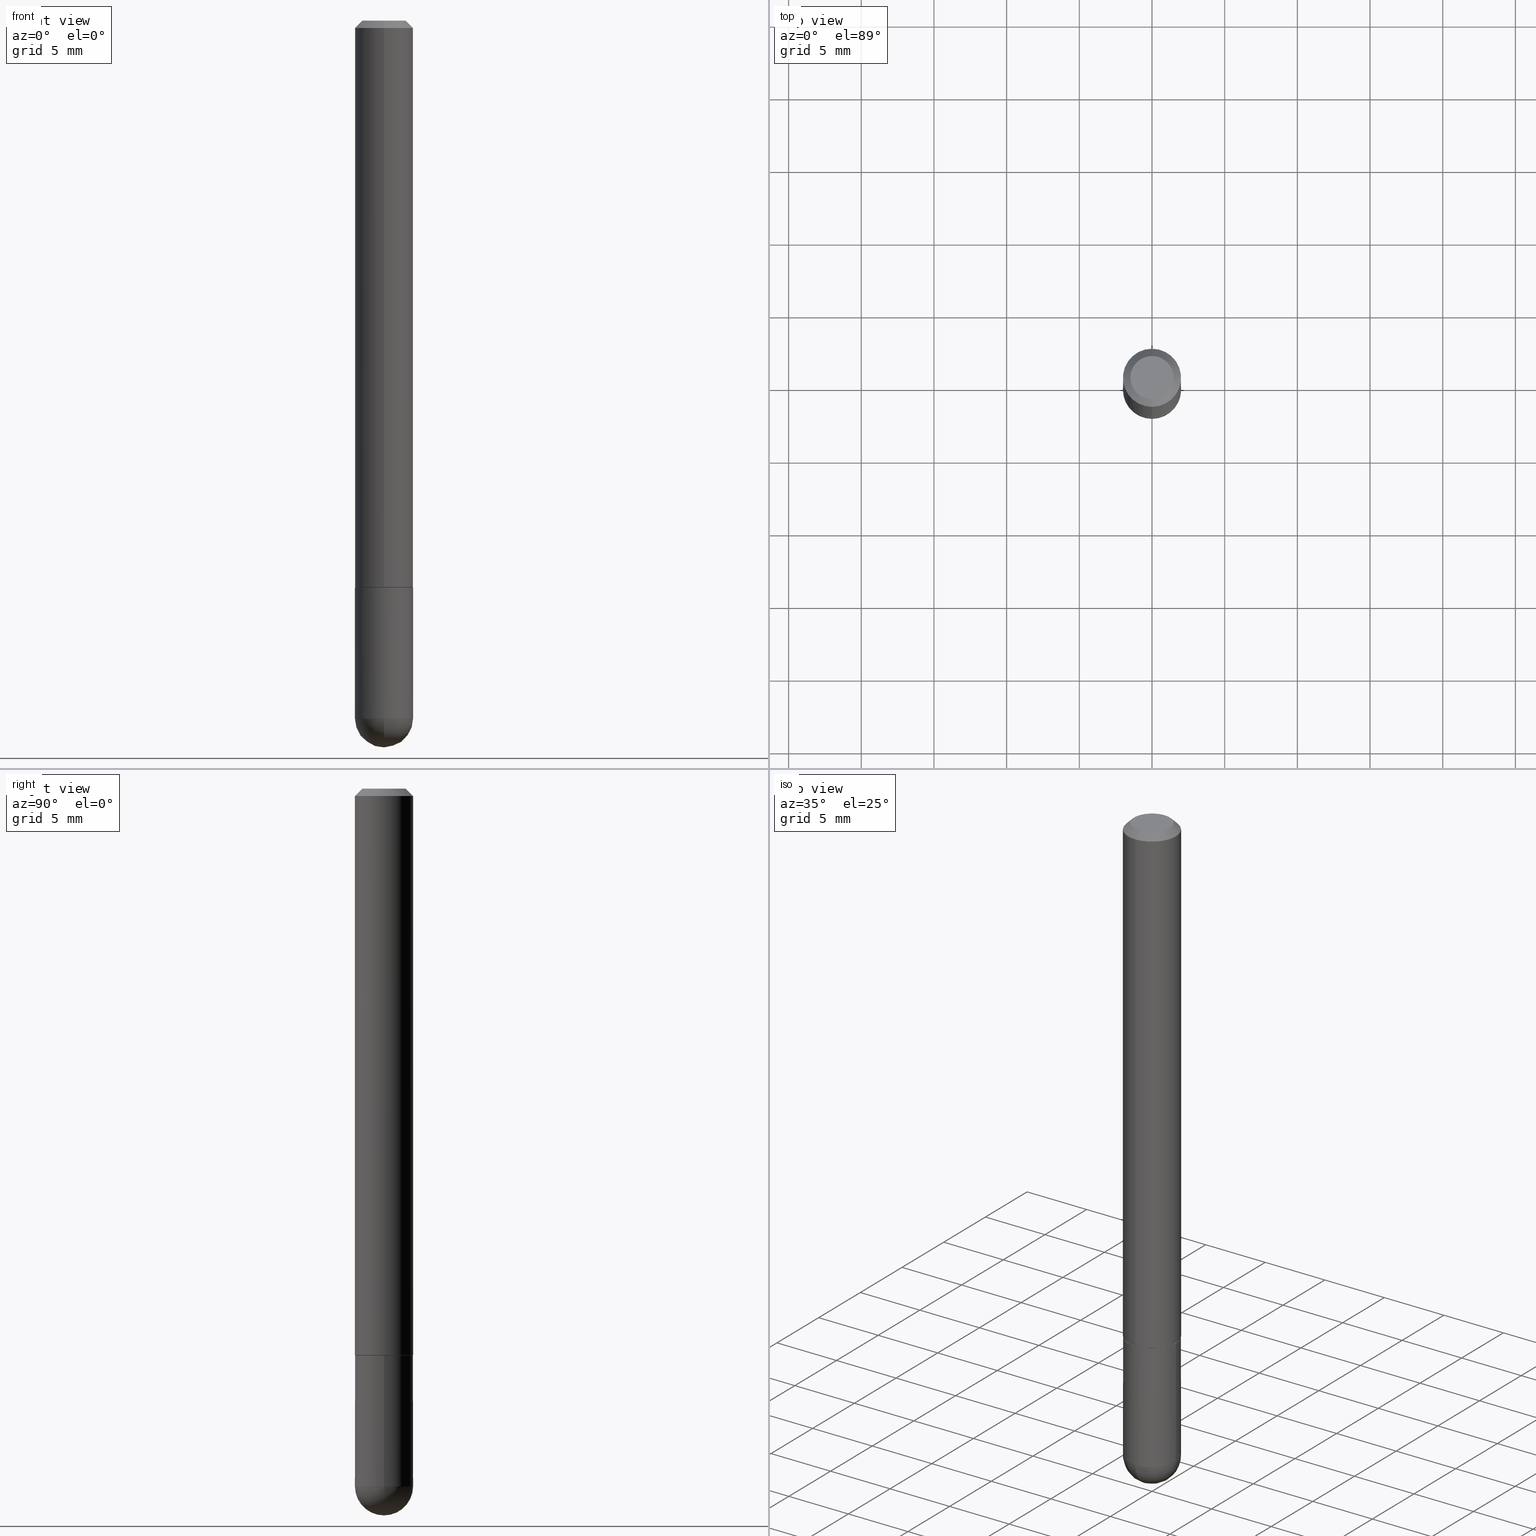
[diagram: canonical four-view strip — front | top / right | iso, engineering-drawing reading convention]
A machine part, canonical four-view strip (front | top / right | iso — engineering-drawing reading convention). The complete STEP part file that produces these views, byte-faithful:
ISO-10303-21;
HEADER;
FILE_DESCRIPTION (( 'STEP AP203' ),
    '1' );
FILE_NAME ('44571.STEP',
    '2024-04-10T11:45:22',
    ( '' ),
    ( '' ),
    'SwSTEP 2.0',
    'SolidWorks 2023',
    '' );
FILE_SCHEMA (( 'CONFIG_CONTROL_DESIGN' ));
ENDSEC;

DATA;
#1 = AXIS2_PLACEMENT_3D ( 'NONE', #28, #101, #190 ) ;
#2 = CYLINDRICAL_SURFACE ( 'NONE', #323, 0.07874999999999997280 ) ;
#3 = EDGE_CURVE ( 'NONE', #275, #246, #411, .T. ) ;
#4 = ORIENTED_EDGE ( 'NONE', *, *, #22, .T. ) ;
#5 = CARTESIAN_POINT ( 'NONE',  ( -5.595524044110351185E-16, -0.07875000000000693945, -1.889750000000000041 ) ) ;
#6 = AXIS2_PLACEMENT_3D ( 'NONE', #162, #276, #313 ) ;
#7 = DIRECTION ( 'NONE',  ( -6.982962677686265133E-15, -1.000000000000000000, 3.513630860018345064E-15 ) ) ;
#8 = APPROVAL_DATE_TIME ( #291, #395 ) ;
#9 = CONICAL_SURFACE ( 'NONE', #336, 0.07774999999999999967, 0.7853981633975251064 ) ;
#10 = ORIENTED_EDGE ( 'NONE', *, *, #114, .T. ) ;
#11 = VERTEX_POINT ( 'NONE', #274 ) ;
#12 = CARTESIAN_POINT ( 'NONE',  ( 5.499083108678308166E-16, 0.07874999999999462985, -1.535400000000000320 ) ) ;
#13 = APPROVAL_ROLE ( '' ) ;
#14 = AXIS2_PLACEMENT_3D ( 'NONE', #219, #34, #214 ) ;
#15 = PERSON_AND_ORGANIZATION_ROLE ( 'creator' ) ;
#16 = ORIENTED_EDGE ( 'NONE', *, *, #283, .T. ) ;
#17 = VECTOR ( 'NONE', #335, 39.37007874015748854 ) ;
#18 = CARTESIAN_POINT ( 'NONE',  ( 3.754894082799516918E-29, -5.360646770972009792E-15, -1.535399999999999876 ) ) ;
#19 = EDGE_CURVE ( 'NONE', #299, #11, #361, .T. ) ;
#20 = PERSON_AND_ORGANIZATION ( #380, #355 ) ;
#21 = ORIENTED_EDGE ( 'NONE', *, *, #61, .T. ) ;
#22 = EDGE_CURVE ( 'NONE', #340, #351, #238, .T. ) ;
#23 = DIRECTION ( 'NONE',  ( -6.982962677686266711E-15, -1.000000000000000000, 3.491368223897362270E-15 ) ) ;
#24 = EDGE_LOOP ( 'NONE', ( #330, #150, #301, #119 ) ) ;
#25 = DIRECTION ( 'NONE',  ( -2.445547793929605997E-29, 3.491368223897361875E-15, 1.000000000000000000 ) ) ;
#26 = CIRCLE ( 'NONE', #40, 0.07875000000000022260 ) ;
#27 = CARTESIAN_POINT ( 'NONE',  ( 4.800786840909312308E-16, 0.05875000000000003830, -1.752449412263320642E-16 ) ) ;
#28 = CARTESIAN_POINT ( 'NONE',  ( 4.290204898574475789E-29, -7.072209228218884542E-15, -1.889750000000000041 ) ) ;
#29 = DIRECTION ( 'NONE',  ( -6.982962677686265922E-15, -1.000000000000000000, 3.469013325287952110E-15 ) ) ;
#30 = PLANE ( 'NONE',  #112 ) ;
#31 = DIRECTION ( 'NONE',  ( -6.982962677686265133E-15, -1.000000000000000000, 3.513630860018345064E-15 ) ) ;
#32 = AXIS2_PLACEMENT_3D ( 'NONE', #402, #121, #387 ) ;
#33 = CIRCLE ( 'NONE', #97, 0.07774999999999999967 ) ;
#34 = DIRECTION ( 'NONE',  ( -2.445468806185136597E-29, 3.491481338843145583E-15, 1.000000000000000000 ) ) ;
#35 = LINE ( 'NONE', #220, #306 ) ;
#36 = EDGE_CURVE ( 'NONE', #83, #210, #85, .T. ) ;
#37 = DIRECTION ( 'NONE',  ( -2.445547793929605997E-29, 3.491368223897361875E-15, 1.000000000000000000 ) ) ;
#38 = FACE_OUTER_BOUND ( 'NONE', #24, .T. ) ;
#39 = AXIS2_PLACEMENT_3D ( 'NONE', #138, #160, #129 ) ;
#40 = AXIS2_PLACEMENT_3D ( 'NONE', #349, #43, #169 ) ;
#41 = CARTESIAN_POINT ( 'NONE',  ( 4.621324676488362597E-29, -6.598026860078835823E-15, -1.889750000000000263 ) ) ;
#42 = CIRCLE ( 'NONE', #311, 0.07875000000000002831 ) ;
#43 = DIRECTION ( 'NONE',  ( -2.445547793929605997E-29, 3.491368223897361875E-15, 1.000000000000000000 ) ) ;
#44 = DIRECTION ( 'NONE',  ( -1.000000000000000000, 6.982962677686265922E-15, -4.883557194083112340E-29 ) ) ;
#45 = ORIENTED_EDGE ( 'NONE', *, *, #3, .T. ) ;
#46 = DIRECTION ( 'NONE',  ( -6.982962677686265133E-15, -1.000000000000000000, 3.513630860018345064E-15 ) ) ;
#47 = APPROVAL_PERSON_ORGANIZATION ( #186, #123, #298 ) ;
#48 = ORIENTED_EDGE ( 'NONE', *, *, #36, .T. ) ;
#49 = CARTESIAN_POINT ( 'NONE',  ( 3.754894082799516918E-29, -5.360646770972009792E-15, -1.535399999999999876 ) ) ;
#50 = ORIENTED_EDGE ( 'NONE', *, *, #114, .F. ) ;
#51 =( CONVERSION_BASED_UNIT ( 'INCH', #84 ) LENGTH_UNIT ( ) NAMED_UNIT ( #242 ) );
#52 = ORIENTED_EDGE ( 'NONE', *, *, #353, .F. ) ;
#53 =( NAMED_UNIT ( * ) PLANE_ANGLE_UNIT ( ) SI_UNIT ( $, .RADIAN. ) );
#54 = CIRCLE ( 'NONE', #137, 0.07875000000000022260 ) ;
#55 = APPROVAL_PERSON_ORGANIZATION ( #286, #395, #13 ) ;
#56 = DIRECTION ( 'NONE',  ( 1.000000000000000000, -6.982962677686265922E-15, 4.883557194083112340E-29 ) ) ;
#57 = AXIS2_PLACEMENT_3D ( 'NONE', #68, #136, #379 ) ;
#58 = CALENDAR_DATE ( 2024, 10, 4 ) ;
#59 = EDGE_LOOP ( 'NONE', ( #154, #258, #86, #271, #324 ) ) ;
#60 = DIRECTION ( 'NONE',  ( 2.438088387897960049E-29, -3.491481338843145188E-15, -1.000000000000000000 ) ) ;
#61 = EDGE_CURVE ( 'NONE', #74, #245, #341, .T. ) ;
#62 = AXIS2_PLACEMENT_3D ( 'NONE', #116, #398, #360 ) ;
#63 = UNCERTAINTY_MEASURE_WITH_UNIT (LENGTH_MEASURE( 1.000000000000000082E-05 ), #51, 'distance_accuracy_value', 'NONE');
#64 = CARTESIAN_POINT ( 'NONE',  ( -4.716592373467927555E-16, -0.05875000000000003830, 2.349908250816082500E-16 ) ) ;
#65 = PLANE ( 'NONE',  #208 ) ;
#66 = PRODUCT_DEFINITION_SHAPE ( 'NONE', 'NONE',  #343 ) ;
#67 = LINE ( 'NONE', #224, #17 ) ;
#68 = CARTESIAN_POINT ( 'NONE',  ( 4.621324676488362597E-29, -6.598026860078835823E-15, -1.889750000000000263 ) ) ;
#69 = FACE_OUTER_BOUND ( 'NONE', #147, .T. ) ;
#70 = CARTESIAN_POINT ( 'NONE',  ( 4.621324676488362597E-29, -6.598026860078835823E-15, -1.889750000000000263 ) ) ;
#71 = ADVANCED_FACE ( 'NONE', ( #266 ), #200, .T. ) ;
#72 = FACE_OUTER_BOUND ( 'NONE', #292, .T. ) ;
#73 = LINE ( 'NONE', #79, #124 ) ;
#74 = VERTEX_POINT ( 'NONE', #177 ) ;
#75 = FACE_OUTER_BOUND ( 'NONE', #378, .T. ) ;
#76 = CARTESIAN_POINT ( 'NONE',  ( 4.290204898574475789E-29, -7.072209228218884542E-15, -1.889750000000000041 ) ) ;
#77 = PERSON_AND_ORGANIZATION ( #380, #355 ) ;
#78 = ORIENTED_EDGE ( 'NONE', *, *, #61, .F. ) ;
#79 = CARTESIAN_POINT ( 'NONE',  ( 5.499083108677941345E-16, 0.07874999999999995892, -0.02000000000000029185 ) ) ;
#80 = DIRECTION ( 'NONE',  ( 0.000000000000000000, 0.000000000000000000, 1.000000000000000000 ) ) ;
#81 = CARTESIAN_POINT ( 'NONE',  ( 0.000000000000000000, 0.000000000000000000, 0.000000000000000000 ) ) ;
#82 = CALENDAR_DATE ( 2024, 10, 4 ) ;
#83 = VERTEX_POINT ( 'NONE', #325 ) ;
#84 = LENGTH_MEASURE_WITH_UNIT ( LENGTH_MEASURE( 0.02539999999999999897 ), #352 );
#85 = LINE ( 'NONE', #156, #281 ) ;
#86 = ORIENTED_EDGE ( 'NONE', *, *, #392, .F. ) ;
#87 = ADVANCED_FACE ( 'NONE', ( #72 ), #9, .T. ) ;
#88 = VECTOR ( 'NONE', #217, 39.37007874015748143 ) ;
#89 = APPROVAL_DATE_TIME ( #396, #123 ) ;
#90 = VERTEX_POINT ( 'NONE', #5 ) ;
#91 = CIRCLE ( 'NONE', #315, 0.07875000000000000056 ) ;
#92 = AXIS2_PLACEMENT_3D ( 'NONE', #12, #60, #115 ) ;
#93 = CARTESIAN_POINT ( 'NONE',  ( -5.402642173245077911E-16, -0.07875000000000009770, -0.01999999999999974368 ) ) ;
#94 = CC_DESIGN_PERSON_AND_ORGANIZATION_ASSIGNMENT ( #144, #240, ( #346 ) ) ;
#95 = CARTESIAN_POINT ( 'NONE',  ( -5.402642173245077911E-16, -0.07875000000000009770, -0.01999999999999974368 ) ) ;
#96 = DIRECTION ( 'NONE',  ( -2.445547793929605997E-29, 3.491368223897361875E-15, 1.000000000000000000 ) ) ;
#97 = AXIS2_PLACEMENT_3D ( 'NONE', #18, #260, #7 ) ;
#98 = DIRECTION ( 'NONE',  ( 1.000000000000000000, -6.982962677686261977E-15, 0.000000000000000000 ) ) ;
#99 = CC_DESIGN_APPROVAL ( #395, ( #343 ) ) ;
#100 = DIRECTION ( 'NONE',  ( 1.000000000000000000, -6.982962677686267499E-15, 4.876176775795935793E-29 ) ) ;
#101 = DIRECTION ( 'NONE',  ( -1.000000000000000000, 6.982962677686265922E-15, -4.883557194083112340E-29 ) ) ;
#102 = DIRECTION ( 'NONE',  ( -2.445468806185136597E-29, 3.491481338843145583E-15, 1.000000000000000000 ) ) ;
#103 = AXIS2_PLACEMENT_3D ( 'NONE', #81, #383, #294 ) ;
#104 = DIRECTION ( 'NONE',  ( -2.445547793929605997E-29, 3.491368223897361875E-15, 1.000000000000000000 ) ) ;
#105 = DIRECTION ( 'NONE',  ( 1.000000000000000000, 0.000000000000000000, 0.000000000000000000 ) ) ;
#106 = FACE_OUTER_BOUND ( 'NONE', #109, .T. ) ;
#107 = EDGE_LOOP ( 'NONE', ( #78, #358, #412, #110 ) ) ;
#108 = EDGE_CURVE ( 'NONE', #299, #248, #33, .T. ) ;
#109 = EDGE_LOOP ( 'NONE', ( #135, #151 ) ) ;
#110 = ORIENTED_EDGE ( 'NONE', *, *, #183, .F. ) ;
#111 = PERSON_AND_ORGANIZATION_ROLE ( 'design_owner' ) ;
#112 = AXIS2_PLACEMENT_3D ( 'NONE', #308, #161, #278 ) ;
#113 = ORIENTED_EDGE ( 'NONE', *, *, #235, .T. ) ;
#114 = EDGE_CURVE ( 'NONE', #11, #340, #229, .T. ) ;
#115 = DIRECTION ( 'NONE',  ( -1.000000000000000000, 6.982962677686265922E-15, -4.876176775795935793E-29 ) ) ;
#116 = CARTESIAN_POINT ( 'NONE',  ( 4.891095587859216689E-31, -6.982736447794729618E-17, -0.02000000000000001776 ) ) ;
#117 = ORIENTED_EDGE ( 'NONE', *, *, #19, .F. ) ;
#118 = DATE_TIME_ROLE ( 'classification_date' ) ;
#119 = ORIENTED_EDGE ( 'NONE', *, *, #254, .T. ) ;
#120 = EDGE_CURVE ( 'NONE', #381, #90, #222, .T. ) ;
#121 = DIRECTION ( 'NONE',  ( 2.445547793929605997E-29, -3.491368223897361875E-15, -1.000000000000000000 ) ) ;
#122 = AXIS2_PLACEMENT_3D ( 'NONE', #371, #257, #31 ) ;
#123 = APPROVAL ( #247, 'UNSPECIFIED' ) ;
#124 = VECTOR ( 'NONE', #197, 39.37007874015748143 ) ;
#125 = FACE_OUTER_BOUND ( 'NONE', #182, .T. ) ;
#126 = CARTESIAN_POINT ( 'NONE',  ( -5.429253481900695647E-16, -0.07775000000000535649, -1.535399999999999654 ) ) ;
#127 = PRODUCT ( '44571', '44571', '', ( #198 ) ) ;
#128 = ADVANCED_BREP_SHAPE_REPRESENTATION ( '44571', ( #384, #388, #180 ), #314 ) ;
#129 = DIRECTION ( 'NONE',  ( 1.000000000000000000, -6.982962677686261977E-15, 0.000000000000000000 ) ) ;
#130 = DIRECTION ( 'NONE',  ( -1.000000000000000000, 7.105427357601001070E-15, -4.926315508542082329E-29 ) ) ;
#131 = EDGE_CURVE ( 'NONE', #248, #299, #376, .T. ) ;
#132 = DIRECTION ( 'NONE',  ( -6.982962677686265922E-15, -1.000000000000000000, 3.491368223897362664E-15 ) ) ;
#133 = EDGE_CURVE ( 'NONE', #184, #351, #141, .T. ) ;
#134 = AXIS2_PLACEMENT_3D ( 'NONE', #76, #44, #171 ) ;
#135 = ORIENTED_EDGE ( 'NONE', *, *, #392, .T. ) ;
#136 = DIRECTION ( 'NONE',  ( -2.445468806185136597E-29, 3.491481338843145583E-15, 1.000000000000000000 ) ) ;
#137 = AXIS2_PLACEMENT_3D ( 'NONE', #149, #269, #205 ) ;
#138 = CARTESIAN_POINT ( 'NONE',  ( 3.754772805016658760E-29, -5.360820447659765363E-15, -1.535399999999999876 ) ) ;
#139 = CC_DESIGN_APPROVAL ( #123, ( #328 ) ) ;
#140 = ORIENTED_EDGE ( 'NONE', *, *, #131, .F. ) ;
#141 = LINE ( 'NONE', #232, #164 ) ;
#142 = CARTESIAN_POINT ( 'NONE',  ( 3.754894082799516918E-29, -5.360646770972009792E-15, -1.535399999999999876 ) ) ;
#143 = ORIENTED_EDGE ( 'NONE', *, *, #131, .T. ) ;
#144 = PERSON_AND_ORGANIZATION ( #380, #355 ) ;
#145 = DIRECTION ( 'NONE',  ( 6.982962677686266711E-15, 1.000000000000000000, 0.000000000000000000 ) ) ;
#146 = DATE_AND_TIME ( #230, #362 ) ;
#147 = EDGE_LOOP ( 'NONE', ( #390, #233, #10, #397 ) ) ;
#148 = PRODUCT_RELATED_PRODUCT_CATEGORY ( 'detail', '', ( #127 ) ) ;
#149 = CARTESIAN_POINT ( 'NONE',  ( 3.752448535005587438E-29, -5.357155402748111845E-15, -1.534399999999999986 ) ) ;
#150 = ORIENTED_EDGE ( 'NONE', *, *, #326, .F. ) ;
#151 = ORIENTED_EDGE ( 'NONE', *, *, #373, .T. ) ;
#152 = AXIS2_PLACEMENT_3D ( 'NONE', #192, #216, #366 ) ;
#153 = ORIENTED_EDGE ( 'NONE', *, *, #158, .F. ) ;
#154 = ORIENTED_EDGE ( 'NONE', *, *, #183, .T. ) ;
#155 = COORDINATED_UNIVERSAL_TIME_OFFSET ( 5, 0, .BEHIND. ) ;
#156 = CARTESIAN_POINT ( 'NONE',  ( 0.07874999999999997280, -5.499083108677933457E-16, 3.839989210939298316E-30 ) ) ;
#157 = EDGE_CURVE ( 'NONE', #246, #351, #73, .T. ) ;
#158 = EDGE_CURVE ( 'NONE', #11, #184, #26, .T. ) ;
#159 = AXIS2_PLACEMENT_3D ( 'NONE', #249, #96, #279 ) ;
#160 = DIRECTION ( 'NONE',  ( -2.445468806185136597E-29, 3.491481338843145583E-15, 1.000000000000000000 ) ) ;
#161 = DIRECTION ( 'NONE',  ( 2.445547793929605997E-29, -3.491368223897361875E-15, -1.000000000000000000 ) ) ;
#162 = CARTESIAN_POINT ( 'NONE',  ( 0.000000000000000000, 0.000000000000000000, 0.000000000000000000 ) ) ;
#163 = ADVANCED_FACE ( 'NONE', ( #285 ), #234, .T. ) ;
#164 = VECTOR ( 'NONE', #345, 39.37007874015748143 ) ;
#165 = EDGE_LOOP ( 'NONE', ( #356, #175, #290, #50 ) ) ;
#166 = CC_DESIGN_APPROVAL ( #403, ( #346 ) ) ;
#167 = ADVANCED_FACE ( 'NONE', ( #106 ), #288, .F. ) ;
#168 = CIRCLE ( 'NONE', #159, 0.05875000000000003830 ) ;
#169 = DIRECTION ( 'NONE',  ( -6.982962677686265133E-15, -1.000000000000000000, 3.469013325287943433E-15 ) ) ;
#170 = APPLICATION_CONTEXT ( 'configuration controlled 3d designs of mechanical parts and assemblies' ) ;
#171 = DIRECTION ( 'NONE',  ( 6.982962677686265922E-15, 1.000000000000000000, -3.469013325287941460E-15 ) ) ;
#172 = PERSON_AND_ORGANIZATION ( #380, #355 ) ;
#173 = CARTESIAN_POINT ( 'NONE',  ( -5.499083108677942332E-16, -0.07875000000000011158, 2.749452476319176875E-16 ) ) ;
#174 = APPLICATION_PROTOCOL_DEFINITION ( 'international standard', 'config_control_design', 1994, #170 ) ;
#175 = ORIENTED_EDGE ( 'NONE', *, *, #133, .T. ) ;
#176 = CONICAL_SURFACE ( 'NONE', #122, 0.07774999999999999967, 0.7853981633975251064 ) ;
#177 = CARTESIAN_POINT ( 'NONE',  ( 4.486152784325199885E-29, -7.342341336881140459E-15, -1.968500000000000361 ) ) ;
#178 = EDGE_LOOP ( 'NONE', ( #52, #21, #228, #303 ) ) ;
#179 =( NAMED_UNIT ( * ) SI_UNIT ( $, .STERADIAN. ) SOLID_ANGLE_UNIT ( ) );
#180 = AXIS2_PLACEMENT_3D ( 'NONE', #386, #80, #105 ) ;
#181 = DESIGN_CONTEXT ( 'detailed design', #255, 'design' ) ;
#182 = EDGE_LOOP ( 'NONE', ( #293, #45 ) ) ;
#183 = EDGE_CURVE ( 'NONE', #245, #381, #344, .T. ) ;
#184 = VERTEX_POINT ( 'NONE', #307 ) ;
#185 = CLOSED_SHELL ( 'NONE', ( #71, #163, #215, #167, #407 ) ) ;
#186 = PERSON_AND_ORGANIZATION ( #380, #355 ) ;
#187 = DIRECTION ( 'NONE',  ( -2.445468806185136597E-29, 3.491481338843145583E-15, 1.000000000000000000 ) ) ;
#188 = DIRECTION ( 'NONE',  ( 1.000000000000000000, -6.982962677686264344E-15, 0.000000000000000000 ) ) ;
#189 = FACE_OUTER_BOUND ( 'NONE', #199, .T. ) ;
#190 = DIRECTION ( 'NONE',  ( 6.982962677686265922E-15, 1.000000000000000000, -3.469013325287941460E-15 ) ) ;
#191 = CYLINDRICAL_SURFACE ( 'NONE', #6, 0.07875000000000011158 ) ;
#192 = CARTESIAN_POINT ( 'NONE',  ( 4.891095587859216689E-31, -6.982736447794729618E-17, -0.02000000000000001776 ) ) ;
#193 = CC_DESIGN_PERSON_AND_ORGANIZATION_ASSIGNMENT ( #20, #206, ( #328 ) ) ;
#194 = PERSON_AND_ORGANIZATION ( #380, #355 ) ;
#195 = LOCAL_TIME ( 7, 45, 22.00000000000000000, #155 ) ;
#196 = ADVANCED_FACE ( 'NONE', ( #125 ), #30, .F. ) ;
#197 = DIRECTION ( 'NONE',  ( 4.937700262164540942E-15, 0.7071067811865441310, -0.7071067811865509034 ) ) ;
#198 = MECHANICAL_CONTEXT ( 'NONE', #170, 'mechanical' ) ;
#199 = EDGE_LOOP ( 'NONE', ( #401, #140 ) ) ;
#200 = CYLINDRICAL_SURFACE ( 'NONE', #103, 0.07874999999999997280 ) ;
#201 = AXIS2_PLACEMENT_3D ( 'NONE', #142, #104, #321 ) ;
#202 = DIRECTION ( 'NONE',  ( -2.445468806185136597E-29, 3.491481338843145583E-15, 1.000000000000000000 ) ) ;
#203 = ORIENTED_EDGE ( 'NONE', *, *, #108, .T. ) ;
#204 = CARTESIAN_POINT ( 'NONE',  ( 4.891095587859216689E-31, -6.982736447794729618E-17, -0.02000000000000001776 ) ) ;
#205 = DIRECTION ( 'NONE',  ( -6.982962677686265133E-15, -1.000000000000000000, 3.469013325287943433E-15 ) ) ;
#206 = PERSON_AND_ORGANIZATION_ROLE ( 'classification_officer' ) ;
#207 = ORIENTED_EDGE ( 'NONE', *, *, #334, .T. ) ;
#208 = AXIS2_PLACEMENT_3D ( 'NONE', #252, #310, #370 ) ;
#209 = DIRECTION ( 'NONE',  ( -2.445468806185136877E-29, 3.491481338843145188E-15, 1.000000000000000000 ) ) ;
#210 = VERTEX_POINT ( 'NONE', #256 ) ;
#211 = COORDINATED_UNIVERSAL_TIME_OFFSET ( 5, 0, .BEHIND. ) ;
#212 = EDGE_LOOP ( 'NONE', ( #280, #16, #4, #312 ) ) ;
#213 = CIRCLE ( 'NONE', #39, 0.07875000000000000056 ) ;
#214 = DIRECTION ( 'NONE',  ( 1.000000000000000000, -6.982962677686264344E-15, 0.000000000000000000 ) ) ;
#215 = ADVANCED_FACE ( 'NONE', ( #223 ), #338, .T. ) ;
#216 = DIRECTION ( 'NONE',  ( 2.445547793929605997E-29, -3.491368223897361875E-15, -1.000000000000000000 ) ) ;
#217 = DIRECTION ( 'NONE',  ( -4.851104656540957175E-15, -0.7071067811865490160, -0.7071067811865460184 ) ) ;
#218 = CARTESIAN_POINT ( 'NONE',  ( 5.559996907323165574E-16, 0.07774999999999462896, -1.535400000000000320 ) ) ;
#219 = CARTESIAN_POINT ( 'NONE',  ( 4.621324676488362597E-29, -6.598026860078835823E-15, -1.889750000000000263 ) ) ;
#220 = CARTESIAN_POINT ( 'NONE',  ( -0.07874999999999997280, 5.595524044110787031E-16, -3.873661383575737091E-30 ) ) ;
#221 = CYLINDRICAL_SURFACE ( 'NONE', #270, 0.07875000000000011158 ) ;
#222 = CIRCLE ( 'NONE', #251, 0.07874999999999997280 ) ;
#223 = FACE_OUTER_BOUND ( 'NONE', #178, .T. ) ;
#224 = CARTESIAN_POINT ( 'NONE',  ( 5.524469770535153630E-16, 0.07774999999999462896, -1.535400000000000320 ) ) ;
#225 = FACE_OUTER_BOUND ( 'NONE', #165, .T. ) ;
#226 = LOCAL_TIME ( 7, 45, 22.00000000000000000, #350 ) ;
#227 = CARTESIAN_POINT ( 'NONE',  ( 0.000000000000000000, 0.000000000000000000, 0.000000000000000000 ) ) ;
#228 = ORIENTED_EDGE ( 'NONE', *, *, #265, .F. ) ;
#229 = LINE ( 'NONE', #173, #231 ) ;
#230 = CALENDAR_DATE ( 2024, 10, 4 ) ;
#231 = VECTOR ( 'NONE', #319, 39.37007874015748143 ) ;
#232 = CARTESIAN_POINT ( 'NONE',  ( 5.595524044110795906E-16, 0.07875000000000011158, -2.749452476319176875E-16 ) ) ;
#233 = ORIENTED_EDGE ( 'NONE', *, *, #410, .T. ) ;
#234 = SPHERICAL_SURFACE ( 'NONE', #134, 0.07875000000000026423 ) ;
#235 = EDGE_CURVE ( 'NONE', #90, #83, #241, .T. ) ;
#236 = ORIENTED_EDGE ( 'NONE', *, *, #373, .F. ) ;
#237 = DIRECTION ( 'NONE',  ( -2.445547793929605997E-29, 3.491368223897361875E-15, 1.000000000000000000 ) ) ;
#238 = CIRCLE ( 'NONE', #62, 0.07875000000000002831 ) ;
#239 = APPROVAL_STATUS ( 'not_yet_approved' ) ;
#240 = PERSON_AND_ORGANIZATION_ROLE ( 'design_supplier' ) ;
#241 = CIRCLE ( 'NONE', #57, 0.07874999999999997280 ) ;
#242 = DIMENSIONAL_EXPONENTS ( 1.000000000000000000, 0.000000000000000000, 0.000000000000000000, 0.000000000000000000, 0.000000000000000000, 0.000000000000000000, 0.000000000000000000 ) ;
#243 = CARTESIAN_POINT ( 'NONE',  ( -5.429253481900695647E-16, -0.07775000000000535649, -1.535399999999999654 ) ) ;
#244 = ADVANCED_FACE ( 'NONE', ( #250 ), #318, .T. ) ;
#245 = VERTEX_POINT ( 'NONE', #287 ) ;
#246 = VERTEX_POINT ( 'NONE', #27 ) ;
#247 = APPROVAL_STATUS ( 'not_yet_approved' ) ;
#248 = VERTEX_POINT ( 'NONE', #218 ) ;
#249 = CARTESIAN_POINT ( 'NONE',  ( -7.305570722932256202E-46, 1.042974402004868536E-31, 2.987294192763809294E-17 ) ) ;
#250 = FACE_OUTER_BOUND ( 'NONE', #212, .T. ) ;
#251 = AXIS2_PLACEMENT_3D ( 'NONE', #41, #202, #316 ) ;
#252 = CARTESIAN_POINT ( 'NONE',  ( 3.754894082799516918E-29, -5.360646770972009792E-15, -1.535399999999999876 ) ) ;
#253 = LINE ( 'NONE', #93, #88 ) ;
#254 = EDGE_CURVE ( 'NONE', #351, #340, #42, .T. ) ;
#255 = APPLICATION_CONTEXT ( 'configuration controlled 3d designs of mechanical parts and assemblies' ) ;
#256 = CARTESIAN_POINT ( 'NONE',  ( 0.07875000000000000056, -5.910728758527558708E-15, -1.535399999999999876 ) ) ;
#257 = DIRECTION ( 'NONE',  ( -2.445547793929605997E-29, 3.491368223897361875E-15, 1.000000000000000000 ) ) ;
#258 = ORIENTED_EDGE ( 'NONE', *, *, #331, .T. ) ;
#259 = DIRECTION ( 'NONE',  ( -2.445468806185136597E-29, 3.491481338843145583E-15, 1.000000000000000000 ) ) ;
#260 = DIRECTION ( 'NONE',  ( -2.445547793929605997E-29, 3.491368223897361875E-15, 1.000000000000000000 ) ) ;
#261 = APPROVAL_ROLE ( '' ) ;
#262 = COORDINATED_UNIVERSAL_TIME_OFFSET ( 5, 0, .BEHIND. ) ;
#263 = CALENDAR_DATE ( 2024, 10, 4 ) ;
#264 = EDGE_LOOP ( 'NONE', ( #203, #207, #153, #117 ) ) ;
#265 = EDGE_CURVE ( 'NONE', #83, #245, #304, .T. ) ;
#266 = FACE_OUTER_BOUND ( 'NONE', #59, .T. ) ;
#267 = PERSON_AND_ORGANIZATION ( #380, #355 ) ;
#268 = VERTEX_POINT ( 'NONE', #367 ) ;
#269 = DIRECTION ( 'NONE',  ( -2.445547793929605997E-29, 3.491368223897361875E-15, 1.000000000000000000 ) ) ;
#270 = AXIS2_PLACEMENT_3D ( 'NONE', #227, #37, #132 ) ;
#271 = ORIENTED_EDGE ( 'NONE', *, *, #36, .F. ) ;
#272 = CALENDAR_DATE ( 2024, 10, 4 ) ;
#273 = DIRECTION ( 'NONE',  ( -4.937700262164926695E-15, -0.7071067811865993091, 0.7071067811864956143 ) ) ;
#274 = CARTESIAN_POINT ( 'NONE',  ( -5.499083108677574525E-16, -0.07875000000000557943, -1.534399999999999542 ) ) ;
#275 = VERTEX_POINT ( 'NONE', #64 ) ;
#276 = DIRECTION ( 'NONE',  ( -2.445547793929605997E-29, 3.491368223897361875E-15, 1.000000000000000000 ) ) ;
#277 = LOCAL_TIME ( 7, 45, 22.00000000000000000, #211 ) ;
#278 = DIRECTION ( 'NONE',  ( 6.982962677686265922E-15, 1.000000000000000000, -3.491368223897361875E-15 ) ) ;
#279 = DIRECTION ( 'NONE',  ( -6.982962677686266711E-15, -1.000000000000000000, 3.491368223897362270E-15 ) ) ;
#280 = ORIENTED_EDGE ( 'NONE', *, *, #3, .F. ) ;
#281 = VECTOR ( 'NONE', #209, 39.37007874015748143 ) ;
#282 = CC_DESIGN_PERSON_AND_ORGANIZATION_ASSIGNMENT ( #172, #111, ( #127 ) ) ;
#283 = EDGE_CURVE ( 'NONE', #275, #340, #253, .T. ) ;
#284 = APPROVAL_DATE_TIME ( #317, #403 ) ;
#285 = FACE_OUTER_BOUND ( 'NONE', #107, .T. ) ;
#286 = PERSON_AND_ORGANIZATION ( #380, #355 ) ;
#287 = CARTESIAN_POINT ( 'NONE',  ( 5.499083108678389024E-16, 0.07874999999999328371, -1.889750000000000485 ) ) ;
#288 = PLANE ( 'NONE',  #92 ) ;
#289 = APPROVAL_STATUS ( 'not_yet_approved' ) ;
#290 = ORIENTED_EDGE ( 'NONE', *, *, #22, .F. ) ;
#291 = DATE_AND_TIME ( #263, #309 ) ;
#292 = EDGE_LOOP ( 'NONE', ( #363, #143, #295, #347 ) ) ;
#293 = ORIENTED_EDGE ( 'NONE', *, *, #326, .T. ) ;
#294 = DIRECTION ( 'NONE',  ( 1.000000000000000000, -6.982962677686267499E-15, 4.876176775795935793E-29 ) ) ;
#295 = ORIENTED_EDGE ( 'NONE', *, *, #19, .T. ) ;
#296 = DIRECTION ( 'NONE',  ( -2.445547793929605997E-29, 3.491368223897361875E-15, 1.000000000000000000 ) ) ;
#297 = AXIS2_PLACEMENT_3D ( 'NONE', #333, #25, #23 ) ;
#298 = APPROVAL_ROLE ( '' ) ;
#299 = VERTEX_POINT ( 'NONE', #126 ) ;
#300 = APPROVAL_PERSON_ORGANIZATION ( #267, #403, #261 ) ;
#301 = ORIENTED_EDGE ( 'NONE', *, *, #157, .T. ) ;
#302 = CC_DESIGN_PERSON_AND_ORGANIZATION_ASSIGNMENT ( #194, #15, ( #343 ) ) ;
#303 = ORIENTED_EDGE ( 'NONE', *, *, #235, .F. ) ;
#304 = CIRCLE ( 'NONE', #14, 0.07874999999999997280 ) ;
#305 = FACE_OUTER_BOUND ( 'NONE', #264, .T. ) ;
#306 = VECTOR ( 'NONE', #406, 39.37007874015748143 ) ;
#307 = CARTESIAN_POINT ( 'NONE',  ( 5.595524044110990163E-16, 0.07874999999999485190, -1.534400000000000208 ) ) ;
#308 = CARTESIAN_POINT ( 'NONE',  ( 4.102490573140684256E-16, 0.05875000000000003830, -1.901814121901510983E-16 ) ) ;
#309 = LOCAL_TIME ( 7, 45, 22.00000000000000000, #394 ) ;
#310 = DIRECTION ( 'NONE',  ( -2.445547793929605997E-29, 3.491368223897361875E-15, 1.000000000000000000 ) ) ;
#311 = AXIS2_PLACEMENT_3D ( 'NONE', #204, #296, #29 ) ;
#312 = ORIENTED_EDGE ( 'NONE', *, *, #157, .F. ) ;
#313 = DIRECTION ( 'NONE',  ( -6.982962677686265922E-15, -1.000000000000000000, 3.491368223897362664E-15 ) ) ;
#314 =( GEOMETRIC_REPRESENTATION_CONTEXT ( 3 ) GLOBAL_UNCERTAINTY_ASSIGNED_CONTEXT ( ( #63 ) ) GLOBAL_UNIT_ASSIGNED_CONTEXT ( ( #51, #53, #179 ) ) REPRESENTATION_CONTEXT ( 'NONE', 'WORKASPACE' ) );
#315 = AXIS2_PLACEMENT_3D ( 'NONE', #372, #259, #98 ) ;
#316 = DIRECTION ( 'NONE',  ( 1.000000000000000000, -6.982962677686264344E-15, 0.000000000000000000 ) ) ;
#317 = DATE_AND_TIME ( #82, #226 ) ;
#318 = CONICAL_SURFACE ( 'NONE', #152, 0.07875000000000002831, 0.7853981633974469467 ) ;
#319 = DIRECTION ( 'NONE',  ( -2.445547793929606278E-29, 3.491368223897361875E-15, 1.000000000000000000 ) ) ;
#320 = ADVANCED_FACE ( 'NONE', ( #305 ), #176, .T. ) ;
#321 = DIRECTION ( 'NONE',  ( -6.982962677686265133E-15, -1.000000000000000000, 3.513630860018345064E-15 ) ) ;
#322 = ORIENTED_EDGE ( 'NONE', *, *, #331, .F. ) ;
#323 = AXIS2_PLACEMENT_3D ( 'NONE', #377, #102, #100 ) ;
#324 = ORIENTED_EDGE ( 'NONE', *, *, #265, .T. ) ;
#325 = CARTESIAN_POINT ( 'NONE',  ( 0.07874999999999997280, -6.529331964737094333E-15, -1.889750000000000263 ) ) ;
#326 = EDGE_CURVE ( 'NONE', #246, #275, #168, .T. ) ;
#327 = CARTESIAN_POINT ( 'NONE',  ( 4.290204898574475789E-29, -7.072209228218884542E-15, -1.889750000000000041 ) ) ;
#328 = SECURITY_CLASSIFICATION ( '', '', #357 ) ;
#329 = CC_DESIGN_DATE_AND_TIME_ASSIGNMENT ( #146, #391, ( #343 ) ) ;
#330 = ORIENTED_EDGE ( 'NONE', *, *, #283, .F. ) ;
#331 = EDGE_CURVE ( 'NONE', #381, #268, #35, .T. ) ;
#332 = SHAPE_DEFINITION_REPRESENTATION ( #66, #128 ) ;
#333 = CARTESIAN_POINT ( 'NONE',  ( -7.305570722932256202E-46, 1.042974402004868536E-31, 2.987294192763809294E-17 ) ) ;
#334 = EDGE_CURVE ( 'NONE', #248, #184, #67, .T. ) ;
#335 = DIRECTION ( 'NONE',  ( 5.024295867788447354E-15, 0.7071067811866040831, 0.7071067811864907293 ) ) ;
#336 = AXIS2_PLACEMENT_3D ( 'NONE', #49, #237, #46 ) ;
#337 = CC_DESIGN_DATE_AND_TIME_ASSIGNMENT ( #400, #118, ( #328 ) ) ;
#338 = SPHERICAL_SURFACE ( 'NONE', #1, 0.07875000000000026423 ) ;
#339 = ADVANCED_FACE ( 'NONE', ( #189 ), #65, .F. ) ;
#340 = VERTEX_POINT ( 'NONE', #95 ) ;
#341 = CIRCLE ( 'NONE', #404, 0.07875000000000026423 ) ;
#342 = PERSON_AND_ORGANIZATION_ROLE ( 'creator' ) ;
#343 = PRODUCT_DEFINITION ( 'UNKNOWN', '', #346, #181 ) ;
#344 = CIRCLE ( 'NONE', #405, 0.07874999999999997280 ) ;
#345 = DIRECTION ( 'NONE',  ( -2.445547793929606278E-29, 3.491368223897361875E-15, 1.000000000000000000 ) ) ;
#346 = PRODUCT_DEFINITION_FORMATION_WITH_SPECIFIED_SOURCE ( 'ANY', '', #127, .NOT_KNOWN. ) ;
#347 = ORIENTED_EDGE ( 'NONE', *, *, #410, .F. ) ;
#348 = ADVANCED_FACE ( 'NONE', ( #69 ), #191, .T. ) ;
#349 = CARTESIAN_POINT ( 'NONE',  ( 3.752448535005587438E-29, -5.357155402748111845E-15, -1.534399999999999986 ) ) ;
#350 = COORDINATED_UNIVERSAL_TIME_OFFSET ( 5, 0, .BEHIND. ) ;
#351 = VERTEX_POINT ( 'NONE', #408 ) ;
#352 =( LENGTH_UNIT ( ) NAMED_UNIT ( * ) SI_UNIT ( $, .METRE. ) );
#353 = EDGE_CURVE ( 'NONE', #74, #90, #393, .T. ) ;
#354 = APPLICATION_PROTOCOL_DEFINITION ( 'international standard', 'config_control_design', 1994, #255 ) ;
#355 = ORGANIZATION ( 'UNSPECIFIED', 'UNSPECIFIED', '' ) ;
#356 = ORIENTED_EDGE ( 'NONE', *, *, #158, .T. ) ;
#357 = SECURITY_CLASSIFICATION_LEVEL ( 'unclassified' ) ;
#358 = ORIENTED_EDGE ( 'NONE', *, *, #353, .T. ) ;
#359 = CONICAL_SURFACE ( 'NONE', #32, 0.07875000000000002831, 0.7853981633974469467 ) ;
#360 = DIRECTION ( 'NONE',  ( -6.982962677686265922E-15, -1.000000000000000000, 3.469013325287952110E-15 ) ) ;
#361 = LINE ( 'NONE', #243, #365 ) ;
#362 = LOCAL_TIME ( 7, 45, 22.00000000000000000, #262 ) ;
#363 = ORIENTED_EDGE ( 'NONE', *, *, #334, .F. ) ;
#364 = CARTESIAN_POINT ( 'NONE',  ( 4.290204898574475789E-29, -7.072209228218884542E-15, -1.889750000000000041 ) ) ;
#365 = VECTOR ( 'NONE', #273, 39.37007874015748854 ) ;
#366 = DIRECTION ( 'NONE',  ( 6.982962677686265922E-15, 1.000000000000000000, -3.469013325287952110E-15 ) ) ;
#367 = CARTESIAN_POINT ( 'NONE',  ( -0.07875000000000000056, -5.419871249458221397E-15, -1.535399999999999876 ) ) ;
#368 = ADVANCED_FACE ( 'NONE', ( #38 ), #359, .T. ) ;
#369 = CC_DESIGN_SECURITY_CLASSIFICATION ( #328, ( #346 ) ) ;
#370 = DIRECTION ( 'NONE',  ( -6.982962677686265922E-15, -1.000000000000000000, 3.491368223897361875E-15 ) ) ;
#371 = CARTESIAN_POINT ( 'NONE',  ( 3.754894082799516918E-29, -5.360646770972009792E-15, -1.535399999999999876 ) ) ;
#372 = CARTESIAN_POINT ( 'NONE',  ( 3.754772805016658760E-29, -5.360820447659765363E-15, -1.535399999999999876 ) ) ;
#373 = EDGE_CURVE ( 'NONE', #268, #210, #213, .T. ) ;
#374 = CLOSED_SHELL ( 'NONE', ( #320, #399, #244, #368, #348, #87, #339, #196 ) ) ;
#375 = DIRECTION ( 'NONE',  ( -7.105427357601000281E-15, -1.000000000000000000, 0.000000000000000000 ) ) ;
#376 = CIRCLE ( 'NONE', #201, 0.07774999999999999967 ) ;
#377 = CARTESIAN_POINT ( 'NONE',  ( 0.000000000000000000, 0.000000000000000000, 0.000000000000000000 ) ) ;
#378 = EDGE_LOOP ( 'NONE', ( #322, #389, #113, #48, #236 ) ) ;
#379 = DIRECTION ( 'NONE',  ( 1.000000000000000000, -6.982962677686264344E-15, 0.000000000000000000 ) ) ;
#380 = PERSON ( 'UNSPECIFIED', 'UNSPECIFIED', 'UNSPECIFIED', ('UNSPECIFIED'), ('UNSPECIFIED'), ('UNSPECIFIED') ) ;
#381 = VERTEX_POINT ( 'NONE', #409 ) ;
#382 = CC_DESIGN_PERSON_AND_ORGANIZATION_ASSIGNMENT ( #77, #342, ( #346 ) ) ;
#383 = DIRECTION ( 'NONE',  ( -2.445468806185136597E-29, 3.491481338843145583E-15, 1.000000000000000000 ) ) ;
#384 = MANIFOLD_SOLID_BREP ( 'Body-Move/Copy2[1]', #185 ) ;
#385 = AXIS2_PLACEMENT_3D ( 'NONE', #364, #130, #375 ) ;
#386 = CARTESIAN_POINT ( 'NONE',  ( 0.000000000000000000, 0.000000000000000000, 0.000000000000000000 ) ) ;
#387 = DIRECTION ( 'NONE',  ( 6.982962677686265922E-15, 1.000000000000000000, -3.469013325287952110E-15 ) ) ;
#388 = MANIFOLD_SOLID_BREP ( 'Body-Move/Copy2[2]', #374 ) ;
#389 = ORIENTED_EDGE ( 'NONE', *, *, #120, .T. ) ;
#390 = ORIENTED_EDGE ( 'NONE', *, *, #133, .F. ) ;
#391 = DATE_TIME_ROLE ( 'creation_date' ) ;
#392 = EDGE_CURVE ( 'NONE', #210, #268, #91, .T. ) ;
#393 = CIRCLE ( 'NONE', #385, 0.07875000000000026423 ) ;
#394 = COORDINATED_UNIVERSAL_TIME_OFFSET ( 5, 0, .BEHIND. ) ;
#395 = APPROVAL ( #289, 'UNSPECIFIED' ) ;
#396 = DATE_AND_TIME ( #272, #277 ) ;
#397 = ORIENTED_EDGE ( 'NONE', *, *, #254, .F. ) ;
#398 = DIRECTION ( 'NONE',  ( -2.445547793929605997E-29, 3.491368223897361875E-15, 1.000000000000000000 ) ) ;
#399 = ADVANCED_FACE ( 'NONE', ( #225 ), #221, .T. ) ;
#400 = DATE_AND_TIME ( #58, #195 ) ;
#401 = ORIENTED_EDGE ( 'NONE', *, *, #108, .F. ) ;
#402 = CARTESIAN_POINT ( 'NONE',  ( 4.891095587859216689E-31, -6.982736447794729618E-17, -0.02000000000000001776 ) ) ;
#403 = APPROVAL ( #239, 'UNSPECIFIED' ) ;
#404 = AXIS2_PLACEMENT_3D ( 'NONE', #327, #56, #145 ) ;
#405 = AXIS2_PLACEMENT_3D ( 'NONE', #70, #187, #188 ) ;
#406 = DIRECTION ( 'NONE',  ( -2.445468806185136877E-29, 3.491481338843145188E-15, 1.000000000000000000 ) ) ;
#407 = ADVANCED_FACE ( 'NONE', ( #75 ), #2, .T. ) ;
#408 = CARTESIAN_POINT ( 'NONE',  ( 5.499083108677941345E-16, 0.07874999999999995892, -0.02000000000000029185 ) ) ;
#409 = CARTESIAN_POINT ( 'NONE',  ( -0.07874999999999997280, -5.419871249458221397E-15, -1.889750000000000263 ) ) ;
#410 = EDGE_CURVE ( 'NONE', #184, #11, #54, .T. ) ;
#411 = CIRCLE ( 'NONE', #297, 0.05875000000000003830 ) ;
#412 = ORIENTED_EDGE ( 'NONE', *, *, #120, .F. ) ;
ENDSEC;
END-ISO-10303-21;
